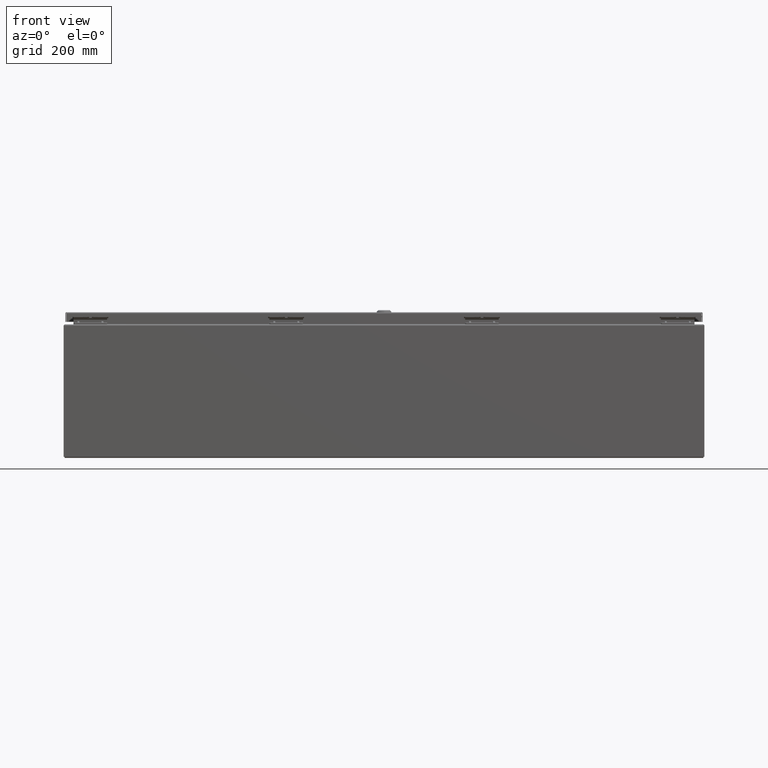
[diagram: clean part render]
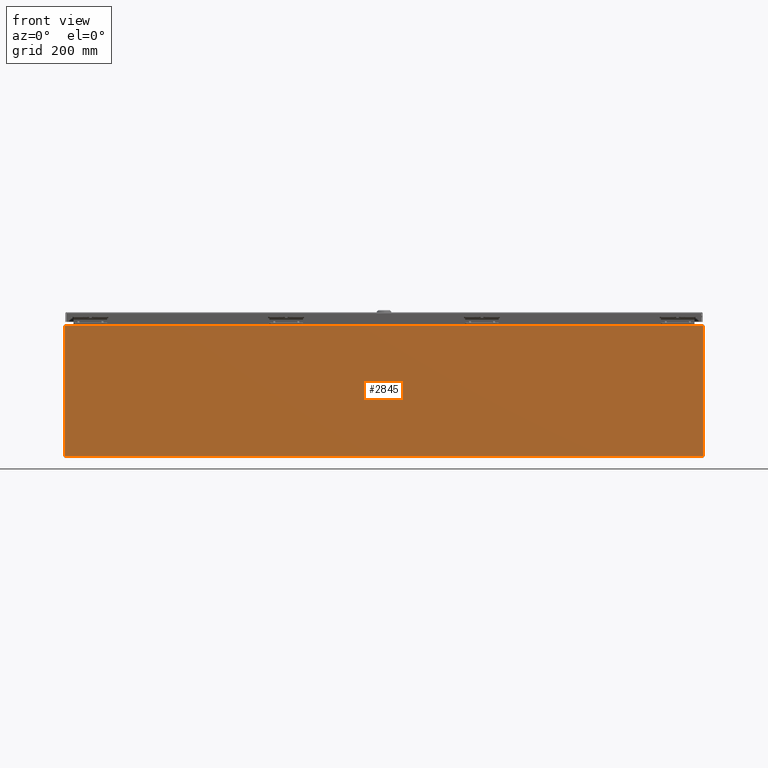
[diagram: same view with one face highlighted and labeled with its STEP entity id]
A machine part, front view. The second image highlights one B-rep face of the part: STEP entity #2845.
In plain terms, the highlighted planar face has unit normal (0, 1, 0).
Its self-contained STEP definition (entity closure, byte-faithful):
#1854=CARTESIAN_POINT('',(47.852000000000004,-1.921638E-015,9.894750000000000));
#1855=VERTEX_POINT('',#1854);
#2141=CARTESIAN_POINT('',(7.221581E-022,-1.921638E-015,9.894750000000000));
#2142=VERTEX_POINT('',#2141);
#2150=CARTESIAN_POINT('',(47.852000000000004,-1.888972E-015,9.894750000000000));
#2151=DIRECTION('',(-1.0,0.0,0.0));
#2152=VECTOR('',#2151,47.852000000000004);
#2153=LINE('',#2150,#2152);
#2154=EDGE_CURVE('',#1855,#2142,#2153,.T.);
#2485=CARTESIAN_POINT('',(-6.148943E-036,1.567728E-015,0.105250000000000));
#2486=VERTEX_POINT('',#2485);
#2493=CARTESIAN_POINT('',(-6.148943E-036,1.567728E-015,0.105250000000000));
#2494=DIRECTION('',(0.0,0.0,1.0));
#2495=VECTOR('',#2494,9.789500000000000);
#2496=LINE('',#2493,#2495);
#2497=EDGE_CURVE('',#2486,#2142,#2496,.T.);
#2532=CARTESIAN_POINT('',(47.852000000000004,1.567728E-015,0.105250000000000));
#2533=VERTEX_POINT('',#2532);
#2534=CARTESIAN_POINT('',(47.852000000000004,-1.303810E-015,9.894750000000000));
#2535=DIRECTION('',(0.0,0.0,-1.0));
#2536=VECTOR('',#2535,9.789500000000000);
#2537=LINE('',#2534,#2536);
#2538=EDGE_CURVE('',#1855,#2533,#2537,.T.);
#2751=CARTESIAN_POINT('',(0.0,1.578888E-015,0.105250000000000));
#2752=DIRECTION('',(1.0,0.0,0.0));
#2753=VECTOR('',#2752,47.852000000000004);
#2754=LINE('',#2751,#2753);
#2755=EDGE_CURVE('',#2486,#2533,#2754,.T.);
#2834=CARTESIAN_POINT('',(23.925999999999991,-3.893163E-014,-11.889732513612781));
#2835=DIRECTION('',(0.0,1.0,0.0));
#2836=DIRECTION('',(1.0,0.0,0.0));
#2837=AXIS2_PLACEMENT_3D('',#2834,#2835,#2836);
#2838=PLANE('',#2837);
#2839=ORIENTED_EDGE('',*,*,#2154,.T.);
#2840=ORIENTED_EDGE('',*,*,#2497,.F.);
#2841=ORIENTED_EDGE('',*,*,#2755,.T.);
#2842=ORIENTED_EDGE('',*,*,#2538,.F.);
#2843=EDGE_LOOP('',(#2839,#2840,#2841,#2842));
#2844=FACE_OUTER_BOUND('',#2843,.T.);
#2845=ADVANCED_FACE('',(#2844),#2838,.F.);